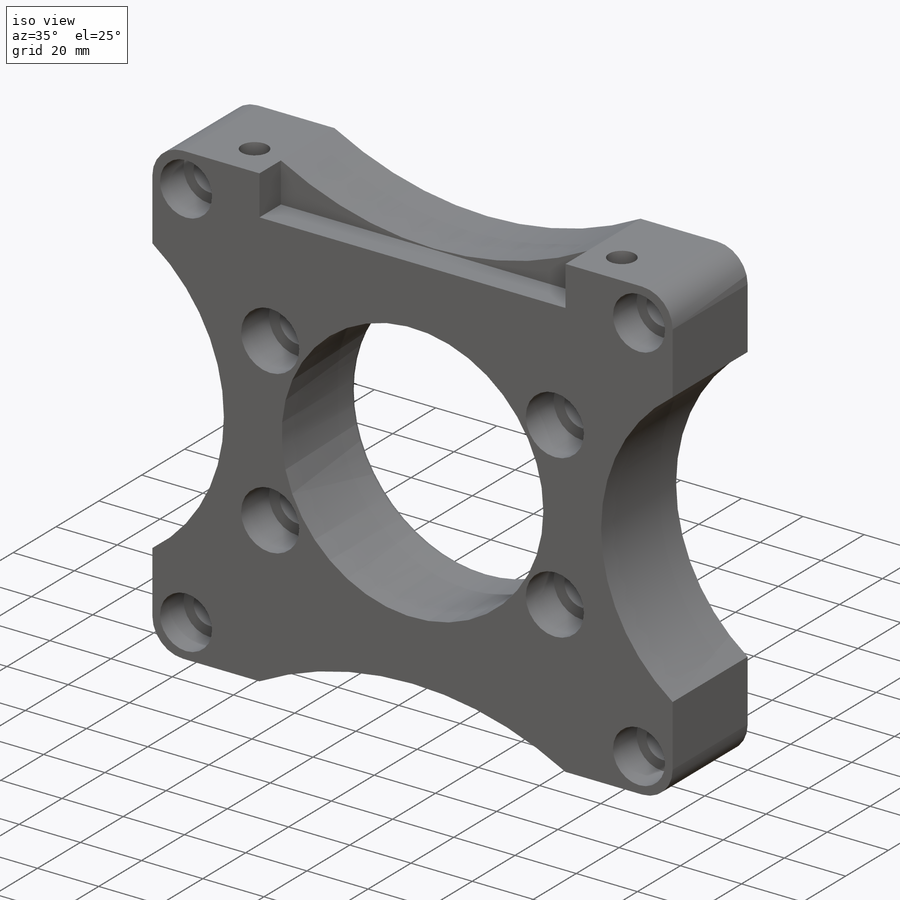
[diagram: iso view]
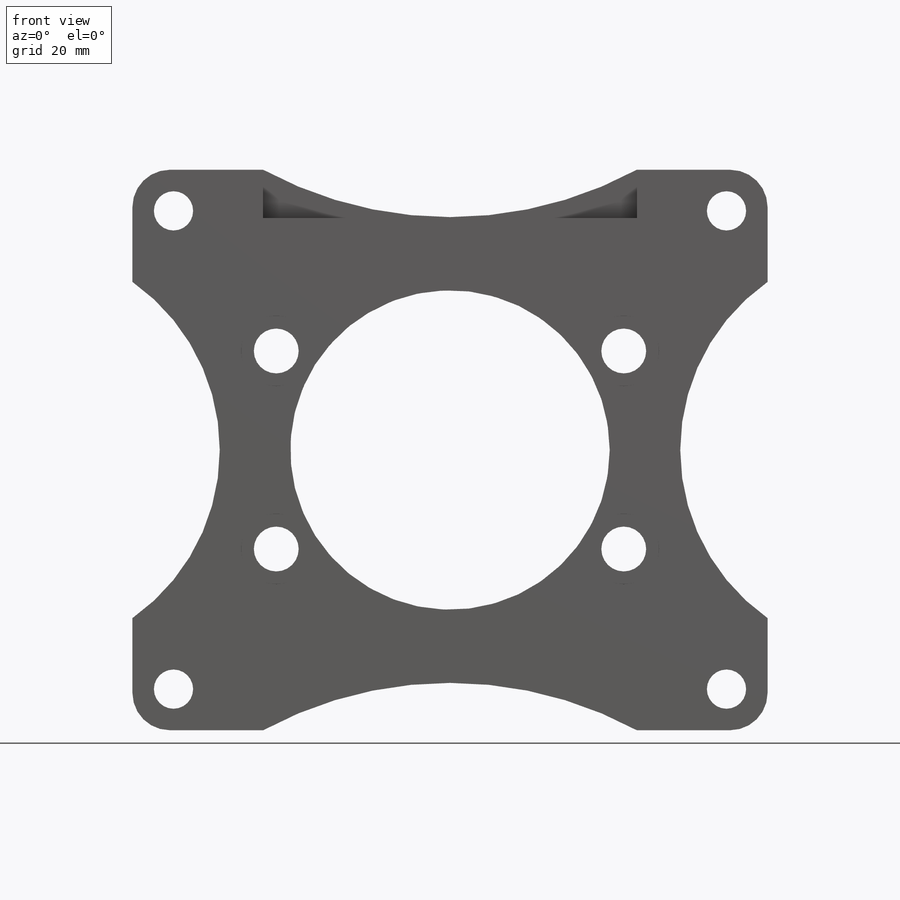
[diagram: front view]
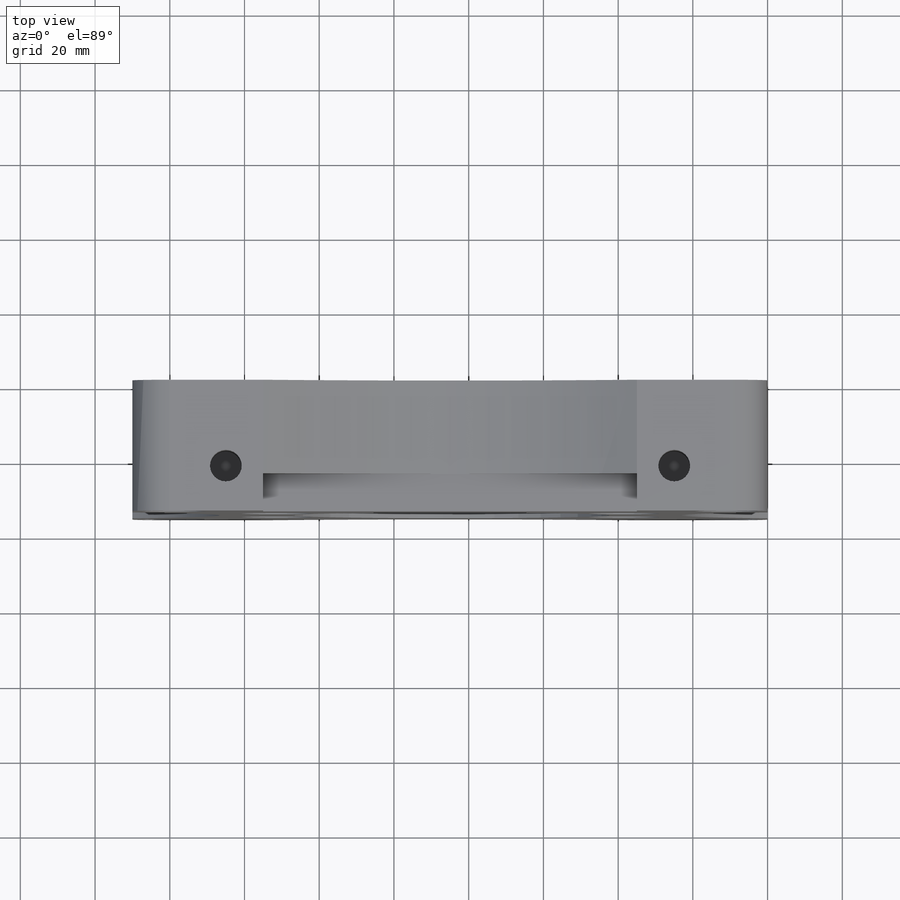
[diagram: top view]
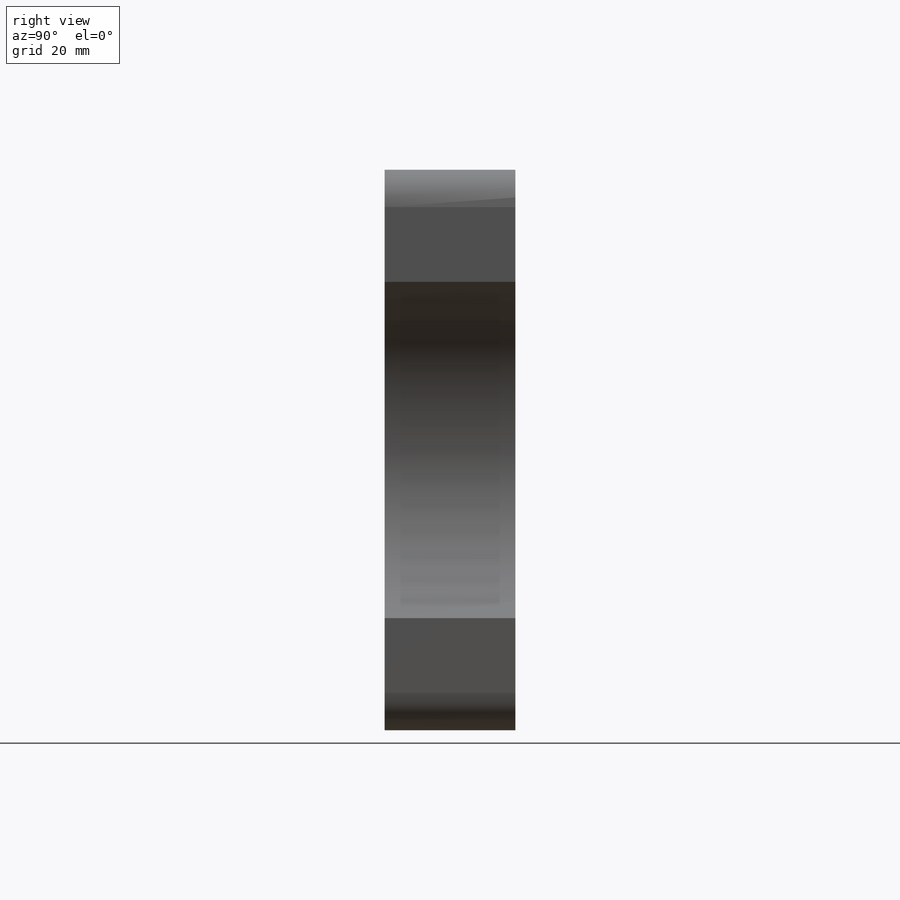
[diagram: right view]
SOLIDWORKS PART (.sldprt)
format: sldprt  version: not decoded by parser v0  size: 529,920 bytes
history: native  units: mm
features: sketch x14, cut_extrude x11, fillet x5, plane x3, material x1, extrude x1, helix x1 (+10 scaffold rows collapsed)
feature tree (46):
  scaffold x10  (default folders/planes/origin — collapsed)
  material  "Matériau <non spécifié>"
  plane  "Plan de face"
  plane  "Plan de dessus"
  plane  "Plan de droite"
  sketch  "Esquisse2"  dims[D1=150.0mm D2=170.0mm]
  extrude  "Boss.-Extru.1"  Depth=35mm
  sketch  "Esquisse3"  dims[D1=85.5mm D2=75.0mm D3=85.0mm]
  cut_extrude  "Enlèv. mat.-Extru.2"  Depth=40mm
  sketch  "Esquisse5"  dims[D1=12.0mm D2=12.0mm D3=12.0mm D4=12.0mm D5=48.5mm D6=48.5mm D7=48.5mm D8=48.5mm D9=38.5mm D10=38.5mm D11=38.5mm D12=38.5mm]
  cut_extrude  "Enlèv. mat.-Extru.3"  Depth=40mm
  sketch  "Esquisse6"  dims[D1=19.0mm D2=19.0mm D3=19.0mm D4=19.0mm]
  cut_extrude  "Enlèv. mat.-Extru.4"  Depth=13mm
  sketch  "Esquisse7"  dims[D1=10.5mm D2=10.5mm D3=10.5mm D4=10.5mm D5=11.0mm D6=11.0mm D7=11.0mm D8=11.0mm D9=11.0mm D10=11.0mm D11=11.0mm D12=11.0mm]
  cut_extrude  "Enlèv. mat.-Extru.5"  Depth=40mm
  sketch  "Esquisse8"  dims[D1=17.0mm D2=17.0mm D3=17.0mm D4=17.0mm]
  cut_extrude  "Enlèv. mat.-Extru.6"  Depth=11mm
  sketch  "Esquisse9"  dims[D1=8.5mm D2=8.5mm D3=25.0mm D4=12.0mm D5=12.0mm D6=25.0mm D7=100.0mm]
  cut_extrude  "Enlèv. mat.-Extru.7"  Depth=25mm
  sketch  "Esquisse15"  dims[D1=10.0mm]
  helix  "Hélice/Spirale2"  Pitch=25mm
  sketch  "Esquisse17"  dims[D1=10.0mm Hélice/Spirale3=0.0 D3=25.0mm D4=1.5mm D5=~16666.666667mm D7=180.0deg]
  sketch  "Esquisse19"  dims[c1.D1=~57.778098mm c1.D3=48.0mm c2.D1=30.0mm c2.D2=30.0mm c2.D3=~57.445626mm c3.D1=~0.719564deg]
  cut_extrude  "Enlèv. mat.-Extru.8"  [1 undecoded]
  sketch  "Esquisse22"  dims[c1.D1=~118.821096mm c1.D3=75.0mm c2.D1=35.0mm c2.D2=35.0mm]
  cut_extrude  "Enlèv. mat.-Extru.12"  [1 undecoded]
  sketch  "Esquisse27"  dims[c1.D1=~50.627021mm c1.D3=48.0mm c2.D1=30.0mm c2.D2=30.0mm]
  cut_extrude  "Enlèv. mat.-Extru.13"  [1 undecoded]
  sketch  "Esquisse28"  dims[c1.D1=~30.098927mm c1.D3=95.0mm c2.D1=35.0mm c2.D2=35.0mm]
  cut_extrude  "Enlèv. mat.-Extru.14"  [1 undecoded]
  fillet  "Congé1"  Radius=10mm
  fillet  "Congé2"  Radius=10mm
  fillet  "Congé3"  Radius=10mm
  fillet  "Congé4"  Radius=10mm
  fillet  "Congé5"  Radius=2mm
  sketch  "Esquisse40"  dims[D1=13.0mm D2=13.0mm]
  cut_extrude  "Enlèv. mat.-Extru.17"  Depth=10mm
decode coverage: 28 of 32 modeling features carry decoded parameters
note: ~ marks probable driven/reference dimensions
note: 4 parameter values undecoded
summary: no parameter record found for 4 features
note: suppression state not decoded; provenance and decode notes live in map.json
